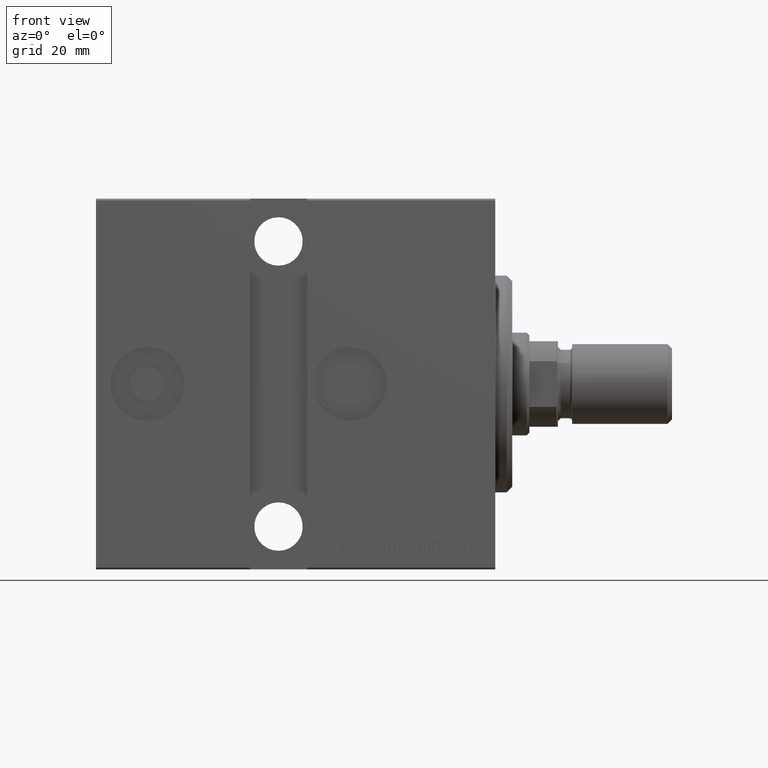
[diagram: clean part render]
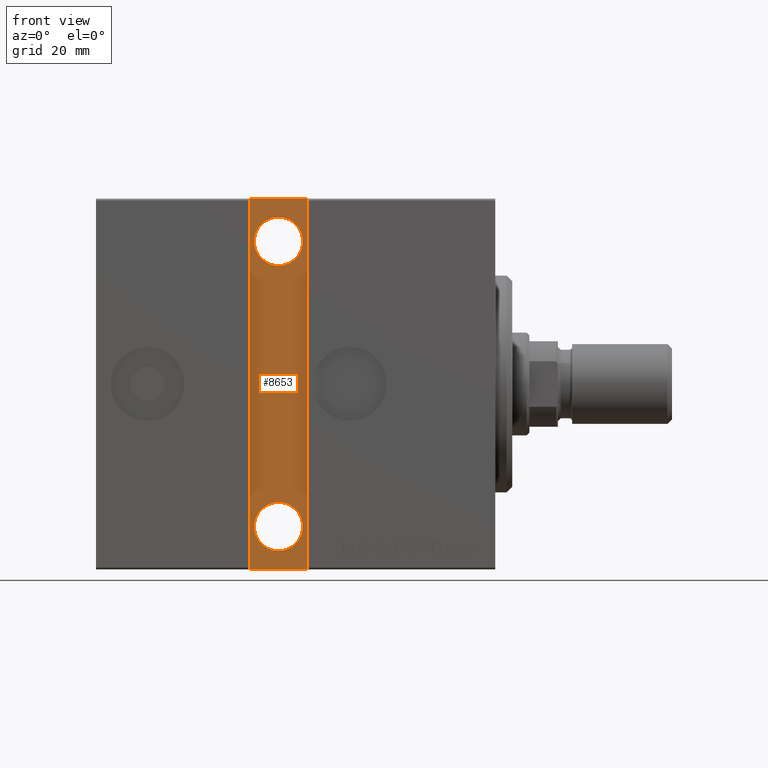
[diagram: same view with one face highlighted and labeled with its STEP entity id]
A machine part, front view. The second image highlights one B-rep face of the part: STEP entity #8653.
In plain terms, the highlighted planar face has unit normal (0, 1, 0).
Its self-contained STEP definition (entity closure, byte-faithful):
#698 = DIRECTION ( 'NONE',  ( 1.000000000000000000, -0.000000000000000000, -0.000000000000000000 ) ) ;
#828 = VECTOR ( 'NONE', #698, 1000.000000000000000 ) ;
#947 = CARTESIAN_POINT ( 'NONE',  ( 33.00000000000000711, 20.49999999999999645, -32.50000000000000000 ) ) ;
#1550 = EDGE_LOOP ( 'NONE', ( #37609, #35912 ) ) ;
#1782 = EDGE_CURVE ( 'NONE', #32994, #13255, #38131, .T. ) ;
#1808 = DIRECTION ( 'NONE',  ( 0.000000000000000000, 0.000000000000000000, -1.000000000000000000 ) ) ;
#2003 = PLANE ( 'NONE',  #37648 ) ;
#2358 = VERTEX_POINT ( 'NONE', #30407 ) ;
#2601 = EDGE_CURVE ( 'NONE', #14173, #2358, #19462, .T. ) ;
#3216 = AXIS2_PLACEMENT_3D ( 'NONE', #4431, #40546, #14001 ) ;
#4431 = CARTESIAN_POINT ( 'NONE',  ( 38.00000000000001421, 20.49999999999999645, -25.00000000000000000 ) ) ;
#4969 = VERTEX_POINT ( 'NONE', #34258 ) ;
#6120 = DIRECTION ( 'NONE',  ( 0.000000000000000000, 0.000000000000000000, -1.000000000000000000 ) ) ;
#6216 = CARTESIAN_POINT ( 'NONE',  ( 33.00000000000000711, 20.49999999999999645, -32.50000000000000000 ) ) ;
#6999 = CARTESIAN_POINT ( 'NONE',  ( 38.00000000000001421, 20.49999999999999645, 25.00000000000000000 ) ) ;
#7591 = VECTOR ( 'NONE', #24423, 1000.000000000000000 ) ;
#8269 = AXIS2_PLACEMENT_3D ( 'NONE', #6999, #17654, #10690 ) ;
#8653 = ADVANCED_FACE ( 'NONE', ( #35294, #18313, #26293 ), #2003, .F. ) ;
#9418 = VECTOR ( 'NONE', #10243, 1000.000000000000000 ) ;
#9467 = CARTESIAN_POINT ( 'NONE',  ( 43.00000000000000711, 20.50000000000000000, -32.50000000000000000 ) ) ;
#10243 = DIRECTION ( 'NONE',  ( -1.000000000000000000, 0.000000000000000000, 0.000000000000000000 ) ) ;
#10459 = CARTESIAN_POINT ( 'NONE',  ( 43.00000000000000000, 20.49999999999999645, -32.50000000000000000 ) ) ;
#10690 = DIRECTION ( 'NONE',  ( 0.000000000000000000, 0.000000000000000000, -1.000000000000000000 ) ) ;
#11530 = CIRCLE ( 'NONE', #3216, 4.249999999999996447 ) ;
#11598 = CARTESIAN_POINT ( 'NONE',  ( 38.00000000000001421, 20.49999999999999645, 25.00000000000000000 ) ) ;
#11817 = DIRECTION ( 'NONE',  ( 0.000000000000000000, -1.000000000000000000, 0.000000000000000000 ) ) ;
#12015 = DIRECTION ( 'NONE',  ( 0.000000000000000000, -1.000000000000000000, 0.000000000000000000 ) ) ;
#12060 = ORIENTED_EDGE ( 'NONE', *, *, #12908, .T. ) ;
#12542 = LINE ( 'NONE', #6216, #25237 ) ;
#12656 = DIRECTION ( 'NONE',  ( 0.000000000000000000, -1.000000000000000000, 0.000000000000000000 ) ) ;
#12908 = EDGE_CURVE ( 'NONE', #37130, #32994, #33968, .T. ) ;
#13234 = CARTESIAN_POINT ( 'NONE',  ( 38.00000000000001421, 20.49999999999999645, -29.25000000000000000 ) ) ;
#13255 = VERTEX_POINT ( 'NONE', #9467 ) ;
#14001 = DIRECTION ( 'NONE',  ( 0.000000000000000000, 0.000000000000000000, -1.000000000000000000 ) ) ;
#14173 = VERTEX_POINT ( 'NONE', #33493 ) ;
#15680 = EDGE_CURVE ( 'NONE', #23350, #37130, #12542, .T. ) ;
#16273 = VERTEX_POINT ( 'NONE', #13234 ) ;
#17654 = DIRECTION ( 'NONE',  ( 0.000000000000000000, -1.000000000000000000, 0.000000000000000000 ) ) ;
#18053 = AXIS2_PLACEMENT_3D ( 'NONE', #11598, #11817, #1808 ) ;
#18313 = FACE_BOUND ( 'NONE', #30648, .T. ) ;
#19462 = CIRCLE ( 'NONE', #18053, 4.249999999999996447 ) ;
#20760 = CIRCLE ( 'NONE', #29760, 4.249999999999996447 ) ;
#23164 = DIRECTION ( 'NONE',  ( 1.067522139062651164E-16, 0.000000000000000000, 1.000000000000000000 ) ) ;
#23350 = VERTEX_POINT ( 'NONE', #947 ) ;
#23538 = CIRCLE ( 'NONE', #8269, 4.249999999999996447 ) ;
#23618 = EDGE_CURVE ( 'NONE', #13255, #23350, #40489, .T. ) ;
#24167 = EDGE_CURVE ( 'NONE', #4969, #16273, #11530, .T. ) ;
#24423 = DIRECTION ( 'NONE',  ( -1.067522139062651164E-16, -0.000000000000000000, -1.000000000000000000 ) ) ;
#25237 = VECTOR ( 'NONE', #23164, 1000.000000000000000 ) ;
#25284 = DIRECTION ( 'NONE',  ( 0.000000000000000000, -0.000000000000000000, -1.000000000000000000 ) ) ;
#26124 = EDGE_LOOP ( 'NONE', ( #30620, #12060, #35272, #40809 ) ) ;
#26293 = FACE_OUTER_BOUND ( 'NONE', #26124, .T. ) ;
#28551 = CARTESIAN_POINT ( 'NONE',  ( 43.00000000000000711, 20.49999999999999645, 32.49999999999995737 ) ) ;
#29760 = AXIS2_PLACEMENT_3D ( 'NONE', #42470, #12656, #6120 ) ;
#30407 = CARTESIAN_POINT ( 'NONE',  ( 38.00000000000001421, 20.49999999999999645, 20.75000000000000355 ) ) ;
#30620 = ORIENTED_EDGE ( 'NONE', *, *, #15680, .T. ) ;
#30648 = EDGE_LOOP ( 'NONE', ( #39740, #33111 ) ) ;
#32994 = VERTEX_POINT ( 'NONE', #28551 ) ;
#33111 = ORIENTED_EDGE ( 'NONE', *, *, #36993, .T. ) ;
#33493 = CARTESIAN_POINT ( 'NONE',  ( 38.00000000000001421, 20.49999999999999645, 29.25000000000000000 ) ) ;
#33968 = LINE ( 'NONE', #35222, #828 ) ;
#34258 = CARTESIAN_POINT ( 'NONE',  ( 38.00000000000001421, 20.49999999999999645, -20.75000000000000355 ) ) ;
#35222 = CARTESIAN_POINT ( 'NONE',  ( 43.00000000000000711, 20.49999999999999645, 32.49999999999995737 ) ) ;
#35272 = ORIENTED_EDGE ( 'NONE', *, *, #1782, .T. ) ;
#35294 = FACE_BOUND ( 'NONE', #1550, .T. ) ;
#35912 = ORIENTED_EDGE ( 'NONE', *, *, #39116, .T. ) ;
#36987 = CARTESIAN_POINT ( 'NONE',  ( 33.00000000000001421, 20.49999999999999645, 32.49999999999995737 ) ) ;
#36993 = EDGE_CURVE ( 'NONE', #16273, #4969, #20760, .T. ) ;
#37130 = VERTEX_POINT ( 'NONE', #36987 ) ;
#37609 = ORIENTED_EDGE ( 'NONE', *, *, #2601, .T. ) ;
#37648 = AXIS2_PLACEMENT_3D ( 'NONE', #41827, #12015, #25284 ) ;
#37699 = CARTESIAN_POINT ( 'NONE',  ( 43.00000000000000000, 20.49999999999999645, -32.50000000000000000 ) ) ;
#38131 = LINE ( 'NONE', #37699, #7591 ) ;
#39116 = EDGE_CURVE ( 'NONE', #2358, #14173, #23538, .T. ) ;
#39740 = ORIENTED_EDGE ( 'NONE', *, *, #24167, .T. ) ;
#40489 = LINE ( 'NONE', #10459, #9418 ) ;
#40546 = DIRECTION ( 'NONE',  ( 0.000000000000000000, -1.000000000000000000, 0.000000000000000000 ) ) ;
#40809 = ORIENTED_EDGE ( 'NONE', *, *, #23618, .T. ) ;
#41827 = CARTESIAN_POINT ( 'NONE',  ( 0.000000000000000000, 20.49999999999999645, 0.000000000000000000 ) ) ;
#42470 = CARTESIAN_POINT ( 'NONE',  ( 38.00000000000001421, 20.49999999999999645, -25.00000000000000000 ) ) ;